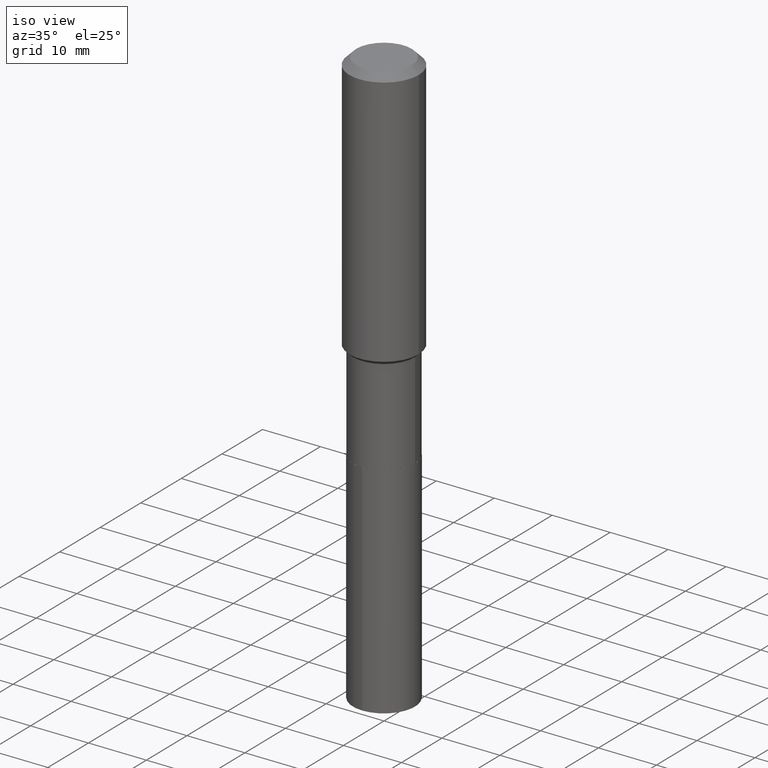
[diagram: clean part render]
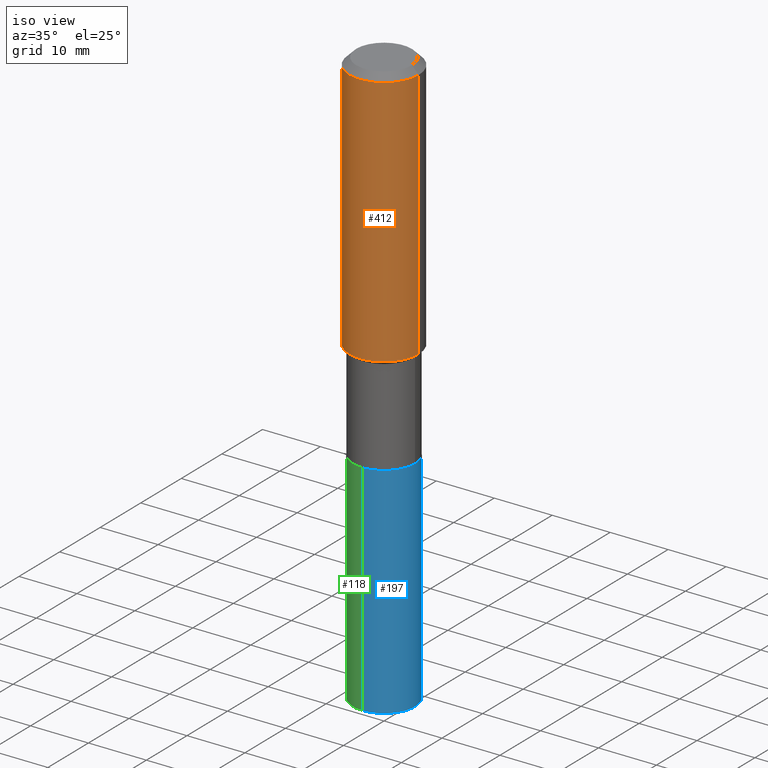
[diagram: same view with three faces highlighted in distinct colors, each labeled with its STEP entity id]
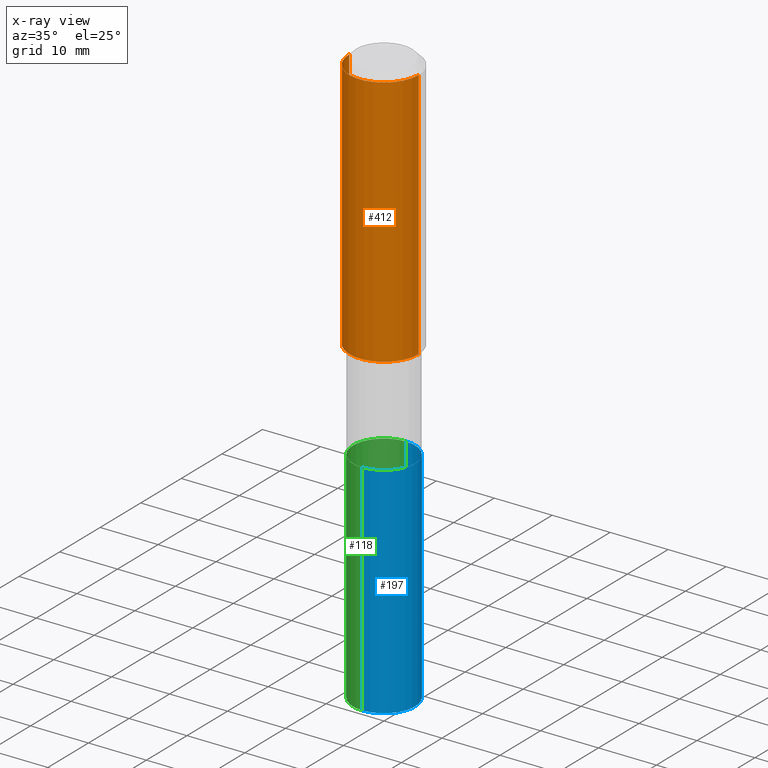
[diagram: x-ray of the same camera — body ghosted, the three highlighted faces saturated]
A machine part, iso view with three faces highlighted in distinct colors.
The next image is the same camera in x-ray (body ghosted, the three faces saturated) — at least one of them is partly hidden behind the body in this view.
Their STEP definitions:

[orange] entity #412 — the highlighted cylindrical surface (partial cylindrical patch) has radius 5.9995 mm, axis along (-0, 0, 1).
#41 = EDGE_CURVE ( 'NONE', #249, #398, #176, .T. ) ;
#49 = VECTOR ( 'NONE', #427, 39.37007874015748143 ) ;
#87 = EDGE_CURVE ( 'NONE', #434, #163, #464, .T. ) ;
#133 = EDGE_CURVE ( 'NONE', #163, #398, #348, .T. ) ;
#139 = ORIENTED_EDGE ( 'NONE', *, *, #87, .F. ) ;
#148 = ORIENTED_EDGE ( 'NONE', *, *, #41, .T. ) ;
#149 = EDGE_LOOP ( 'NONE', ( #139, #416, #148, #171 ) ) ;
#163 = VERTEX_POINT ( 'NONE', #239 ) ;
#168 = CARTESIAN_POINT ( 'NONE',  ( 4.307815575535426705E-29, -6.150418952439141798E-15, -1.761549999999999727 ) ) ;
#171 = ORIENTED_EDGE ( 'NONE', *, *, #133, .F. ) ;
#176 = LINE ( 'NONE', #339, #303 ) ;
#196 = DIRECTION ( 'NONE',  ( -2.445468806185136597E-29, 3.491481338843145583E-15, 1.000000000000000000 ) ) ;
#208 = DIRECTION ( 'NONE',  ( -2.445468806185136597E-29, 3.491481338843145583E-15, 1.000000000000000000 ) ) ;
#215 = DIRECTION ( 'NONE',  ( -2.445468806185136877E-29, 3.491481338843145188E-15, 1.000000000000000000 ) ) ;
#220 = EDGE_CURVE ( 'NONE', #434, #249, #280, .T. ) ;
#232 = DIRECTION ( 'NONE',  ( 1.000000000000000000, -6.982962677686266711E-15, 0.000000000000000000 ) ) ;
#239 = CARTESIAN_POINT ( 'NONE',  ( -0.2361999999999999933, -1.479376323577688976E-15, -0.04724000000000028177 ) ) ;
#241 = FACE_OUTER_BOUND ( 'NONE', #149, .T. ) ;
#249 = VERTEX_POINT ( 'NONE', #269 ) ;
#252 = CARTESIAN_POINT ( 'NONE',  ( 0.2361999999999999933, -1.814313362916447440E-15, -0.04724000000000028177 ) ) ;
#253 = AXIS2_PLACEMENT_3D ( 'NONE', #431, #196, #232 ) ;
#269 = CARTESIAN_POINT ( 'NONE',  ( 0.2362000000000002153, -7.799794736908639901E-15, -1.761549999999999727 ) ) ;
#270 = CARTESIAN_POINT ( 'NONE',  ( -0.2362000000000001043, 1.678301941865357380E-15, -1.161852468318209317E-29 ) ) ;
#280 = CIRCLE ( 'NONE', #443, 0.2362000000000002153 ) ;
#303 = VECTOR ( 'NONE', #215, 39.37007874015748143 ) ;
#333 = DIRECTION ( 'NONE',  ( 1.000000000000000000, -6.982962677686266711E-15, 0.000000000000000000 ) ) ;
#337 = DIRECTION ( 'NONE',  ( 1.000000000000000000, -6.982962677686266711E-15, 4.876176775795935793E-29 ) ) ;
#339 = CARTESIAN_POINT ( 'NONE',  ( 0.2362000000000001043, -1.649375784469496920E-15, 1.151752954443000508E-29 ) ) ;
#348 = CIRCLE ( 'NONE', #253, 0.2361999999999999933 ) ;
#374 = DIRECTION ( 'NONE',  ( -2.445468806185136597E-29, 3.491481338843145583E-15, 1.000000000000000000 ) ) ;
#393 = CYLINDRICAL_SURFACE ( 'NONE', #462, 0.2362000000000001043 ) ;
#398 = VERTEX_POINT ( 'NONE', #252 ) ;
#411 = CARTESIAN_POINT ( 'NONE',  ( -0.2362000000000002153, -4.472117010573783826E-15, -1.761549999999999727 ) ) ;
#412 = ADVANCED_FACE ( 'NONE', ( #241 ), #393, .T. ) ;
#416 = ORIENTED_EDGE ( 'NONE', *, *, #220, .T. ) ;
#427 = DIRECTION ( 'NONE',  ( -2.445468806185136877E-29, 3.491481338843145188E-15, 1.000000000000000000 ) ) ;
#431 = CARTESIAN_POINT ( 'NONE',  ( 1.155239464041865506E-30, -1.649375784469511859E-16, -0.04724000000000028177 ) ) ;
#434 = VERTEX_POINT ( 'NONE', #411 ) ;
#439 = CARTESIAN_POINT ( 'NONE',  ( 0.000000000000000000, 0.000000000000000000, 0.000000000000000000 ) ) ;
#443 = AXIS2_PLACEMENT_3D ( 'NONE', #168, #208, #333 ) ;
#462 = AXIS2_PLACEMENT_3D ( 'NONE', #439, #374, #337 ) ;
#464 = LINE ( 'NONE', #270, #49 ) ;

[blue] entity #197 — the highlighted cylindrical surface (partial cylindrical patch) has radius 5.3505 mm, axis along (-0, 0, 1).
#2 = CIRCLE ( 'NONE', #397, 0.2106500000000000039 ) ;
#29 = CARTESIAN_POINT ( 'NONE',  ( 5.969144809017299038E-29, -8.522356799982232966E-15, -2.440900000000000070 ) ) ;
#58 = CYLINDRICAL_SURFACE ( 'NONE', #152, 0.2106500000000000039 ) ;
#63 = ORIENTED_EDGE ( 'NONE', *, *, #384, .T. ) ;
#64 = CARTESIAN_POINT ( 'NONE',  ( 1.496758272878746916E-15, 0.2106499999999914274, -2.440900000000000514 ) ) ;
#68 = EDGE_CURVE ( 'NONE', #329, #473, #301, .T. ) ;
#74 = CARTESIAN_POINT ( 'NONE',  ( -1.470961088054516309E-15, -0.2106500000000137707, -3.932722758311712585 ) ) ;
#88 = CARTESIAN_POINT ( 'NONE',  ( -1.470961088054552202E-15, -0.2106500000000085526, -2.440899999999999181 ) ) ;
#98 = EDGE_LOOP ( 'NONE', ( #189, #63, #485, #336 ) ) ;
#114 = AXIS2_PLACEMENT_3D ( 'NONE', #29, #311, #460 ) ;
#123 = LINE ( 'NONE', #433, #166 ) ;
#132 = DIRECTION ( 'NONE',  ( -6.982962677686265922E-15, -1.000000000000000000, 3.890597664843479129E-15 ) ) ;
#138 = VECTOR ( 'NONE', #450, 39.37007874015748143 ) ;
#150 = CARTESIAN_POINT ( 'NONE',  ( 9.617247588926023246E-29, -1.373117596690142215E-14, -3.932722758311713029 ) ) ;
#152 = AXIS2_PLACEMENT_3D ( 'NONE', #404, #330, #132 ) ;
#153 = CARTESIAN_POINT ( 'NONE',  ( 1.496758272878747508E-15, 0.2106499999999863482, -3.932722758311713473 ) ) ;
#164 = FACE_OUTER_BOUND ( 'NONE', #98, .T. ) ;
#166 = VECTOR ( 'NONE', #240, 39.37007874015748143 ) ;
#178 = VERTEX_POINT ( 'NONE', #64 ) ;
#185 = CARTESIAN_POINT ( 'NONE',  ( -1.470961088054552202E-15, -0.2106500000000085526, -2.440899999999999181 ) ) ;
#189 = ORIENTED_EDGE ( 'NONE', *, *, #273, .T. ) ;
#197 = ADVANCED_FACE ( 'NONE', ( #164 ), #58, .T. ) ;
#228 = VERTEX_POINT ( 'NONE', #153 ) ;
#240 = DIRECTION ( 'NONE',  ( -2.445399602320894689E-29, 3.491580442715579660E-15, 1.000000000000000000 ) ) ;
#273 = EDGE_CURVE ( 'NONE', #329, #228, #2, .T. ) ;
#299 = EDGE_CURVE ( 'NONE', #473, #178, #316, .T. ) ;
#301 = LINE ( 'NONE', #185, #138 ) ;
#309 = DIRECTION ( 'NONE',  ( -6.982962677686265922E-15, -1.000000000000000000, 2.593731776562319814E-15 ) ) ;
#311 = DIRECTION ( 'NONE',  ( -2.445399602320894408E-29, 3.491580442715579660E-15, 1.000000000000000000 ) ) ;
#316 = CIRCLE ( 'NONE', #114, 0.2106500000000000039 ) ;
#329 = VERTEX_POINT ( 'NONE', #74 ) ;
#330 = DIRECTION ( 'NONE',  ( -2.445399602320894408E-29, 3.491580442715579660E-15, 1.000000000000000000 ) ) ;
#336 = ORIENTED_EDGE ( 'NONE', *, *, #68, .F. ) ;
#343 = DIRECTION ( 'NONE',  ( -2.445399602320894408E-29, 3.491580442715579660E-15, 1.000000000000000000 ) ) ;
#384 = EDGE_CURVE ( 'NONE', #228, #178, #123, .T. ) ;
#397 = AXIS2_PLACEMENT_3D ( 'NONE', #150, #343, #309 ) ;
#404 = CARTESIAN_POINT ( 'NONE',  ( 5.969144809017299038E-29, -8.522356799982232966E-15, -2.440900000000000070 ) ) ;
#433 = CARTESIAN_POINT ( 'NONE',  ( 1.496758272878710628E-15, 0.2106499999999914829, -2.440900000000000514 ) ) ;
#450 = DIRECTION ( 'NONE',  ( -2.445399602320894689E-29, 3.491580442715579660E-15, 1.000000000000000000 ) ) ;
#460 = DIRECTION ( 'NONE',  ( -6.982962677686265922E-15, -1.000000000000000000, 3.890597664843479129E-15 ) ) ;
#473 = VERTEX_POINT ( 'NONE', #88 ) ;
#485 = ORIENTED_EDGE ( 'NONE', *, *, #299, .F. ) ;

[green] entity #118 — the highlighted cylindrical surface (partial cylindrical patch) has radius 5.3505 mm, axis along (-0, 0, 1).
#1 = AXIS2_PLACEMENT_3D ( 'NONE', #80, #89, #40 ) ;
#33 = AXIS2_PLACEMENT_3D ( 'NONE', #365, #93, #211 ) ;
#40 = DIRECTION ( 'NONE',  ( -6.982962677686265922E-15, -1.000000000000000000, 3.890597664843479129E-15 ) ) ;
#50 = DIRECTION ( 'NONE',  ( -6.982962677686265922E-15, -1.000000000000000000, 3.890597664843479129E-15 ) ) ;
#51 = ORIENTED_EDGE ( 'NONE', *, *, #68, .T. ) ;
#64 = CARTESIAN_POINT ( 'NONE',  ( 1.496758272878746916E-15, 0.2106499999999914274, -2.440900000000000514 ) ) ;
#68 = EDGE_CURVE ( 'NONE', #329, #473, #301, .T. ) ;
#74 = CARTESIAN_POINT ( 'NONE',  ( -1.470961088054516309E-15, -0.2106500000000137707, -3.932722758311712585 ) ) ;
#80 = CARTESIAN_POINT ( 'NONE',  ( 5.969144809017299038E-29, -8.522356799982232966E-15, -2.440900000000000070 ) ) ;
#88 = CARTESIAN_POINT ( 'NONE',  ( -1.470961088054552202E-15, -0.2106500000000085526, -2.440899999999999181 ) ) ;
#89 = DIRECTION ( 'NONE',  ( -2.445399602320894408E-29, 3.491580442715579660E-15, 1.000000000000000000 ) ) ;
#93 = DIRECTION ( 'NONE',  ( -2.445399602320894408E-29, 3.491580442715579660E-15, 1.000000000000000000 ) ) ;
#94 = EDGE_LOOP ( 'NONE', ( #214, #127, #51, #174 ) ) ;
#118 = ADVANCED_FACE ( 'NONE', ( #488 ), #262, .T. ) ;
#123 = LINE ( 'NONE', #433, #166 ) ;
#127 = ORIENTED_EDGE ( 'NONE', *, *, #180, .T. ) ;
#138 = VECTOR ( 'NONE', #450, 39.37007874015748143 ) ;
#153 = CARTESIAN_POINT ( 'NONE',  ( 1.496758272878747508E-15, 0.2106499999999863482, -3.932722758311713473 ) ) ;
#157 = CIRCLE ( 'NONE', #33, 0.2106500000000000039 ) ;
#158 = CIRCLE ( 'NONE', #350, 0.2106500000000000039 ) ;
#166 = VECTOR ( 'NONE', #240, 39.37007874015748143 ) ;
#174 = ORIENTED_EDGE ( 'NONE', *, *, #435, .F. ) ;
#178 = VERTEX_POINT ( 'NONE', #64 ) ;
#180 = EDGE_CURVE ( 'NONE', #228, #329, #157, .T. ) ;
#185 = CARTESIAN_POINT ( 'NONE',  ( -1.470961088054552202E-15, -0.2106500000000085526, -2.440899999999999181 ) ) ;
#211 = DIRECTION ( 'NONE',  ( -6.982962677686265922E-15, -1.000000000000000000, 2.593731776562319814E-15 ) ) ;
#214 = ORIENTED_EDGE ( 'NONE', *, *, #384, .F. ) ;
#228 = VERTEX_POINT ( 'NONE', #153 ) ;
#233 = DIRECTION ( 'NONE',  ( -2.445399602320894408E-29, 3.491580442715579660E-15, 1.000000000000000000 ) ) ;
#240 = DIRECTION ( 'NONE',  ( -2.445399602320894689E-29, 3.491580442715579660E-15, 1.000000000000000000 ) ) ;
#262 = CYLINDRICAL_SURFACE ( 'NONE', #1, 0.2106500000000000039 ) ;
#301 = LINE ( 'NONE', #185, #138 ) ;
#329 = VERTEX_POINT ( 'NONE', #74 ) ;
#350 = AXIS2_PLACEMENT_3D ( 'NONE', #428, #233, #50 ) ;
#365 = CARTESIAN_POINT ( 'NONE',  ( 9.617247588926023246E-29, -1.373117596690142215E-14, -3.932722758311713029 ) ) ;
#384 = EDGE_CURVE ( 'NONE', #228, #178, #123, .T. ) ;
#428 = CARTESIAN_POINT ( 'NONE',  ( 5.969144809017299038E-29, -8.522356799982232966E-15, -2.440900000000000070 ) ) ;
#433 = CARTESIAN_POINT ( 'NONE',  ( 1.496758272878710628E-15, 0.2106499999999914829, -2.440900000000000514 ) ) ;
#435 = EDGE_CURVE ( 'NONE', #178, #473, #158, .T. ) ;
#450 = DIRECTION ( 'NONE',  ( -2.445399602320894689E-29, 3.491580442715579660E-15, 1.000000000000000000 ) ) ;
#473 = VERTEX_POINT ( 'NONE', #88 ) ;
#488 = FACE_OUTER_BOUND ( 'NONE', #94, .T. ) ;